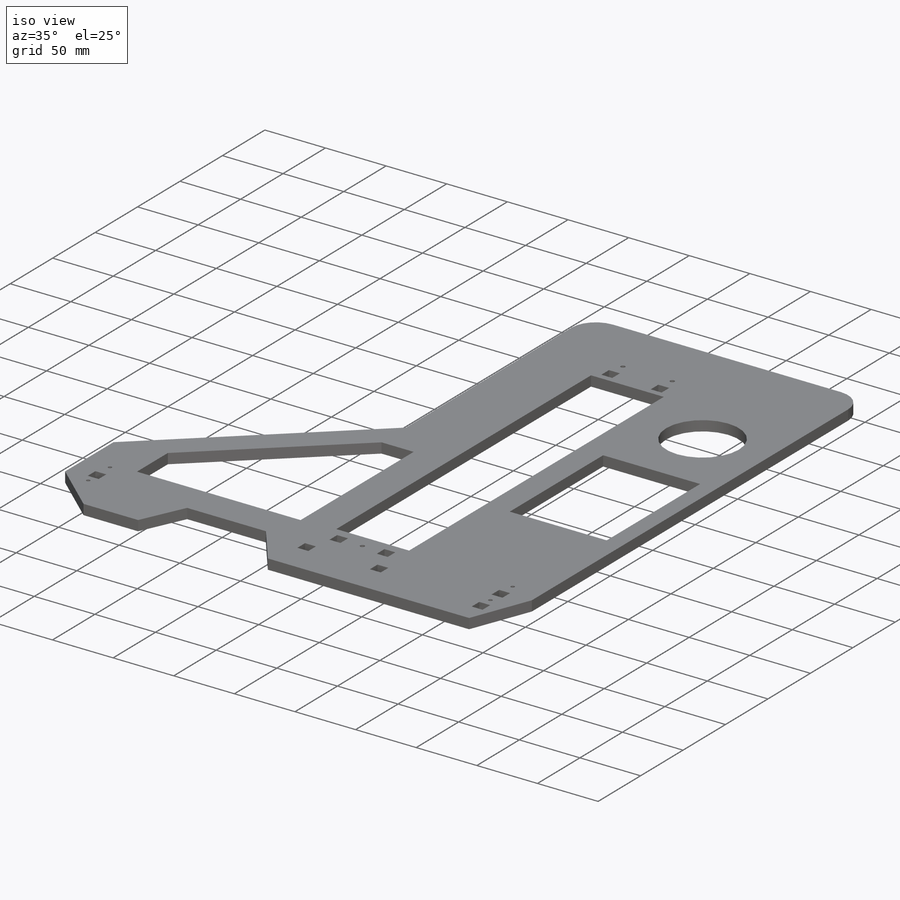
[diagram: iso view]
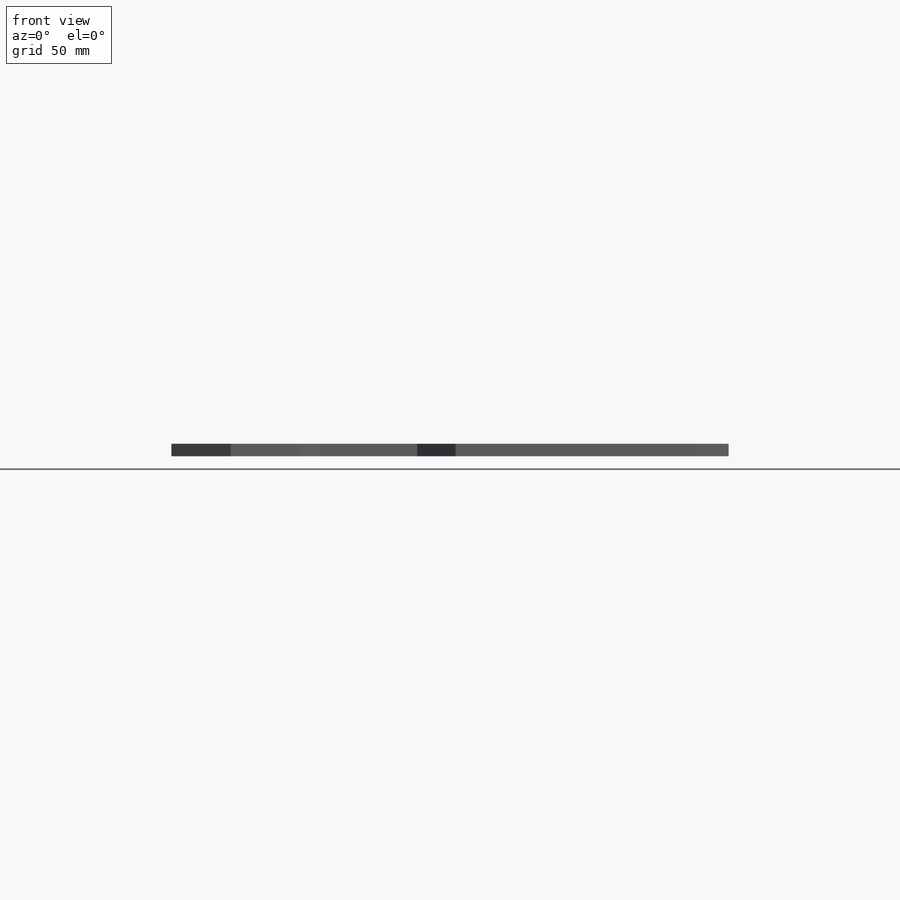
[diagram: front view]
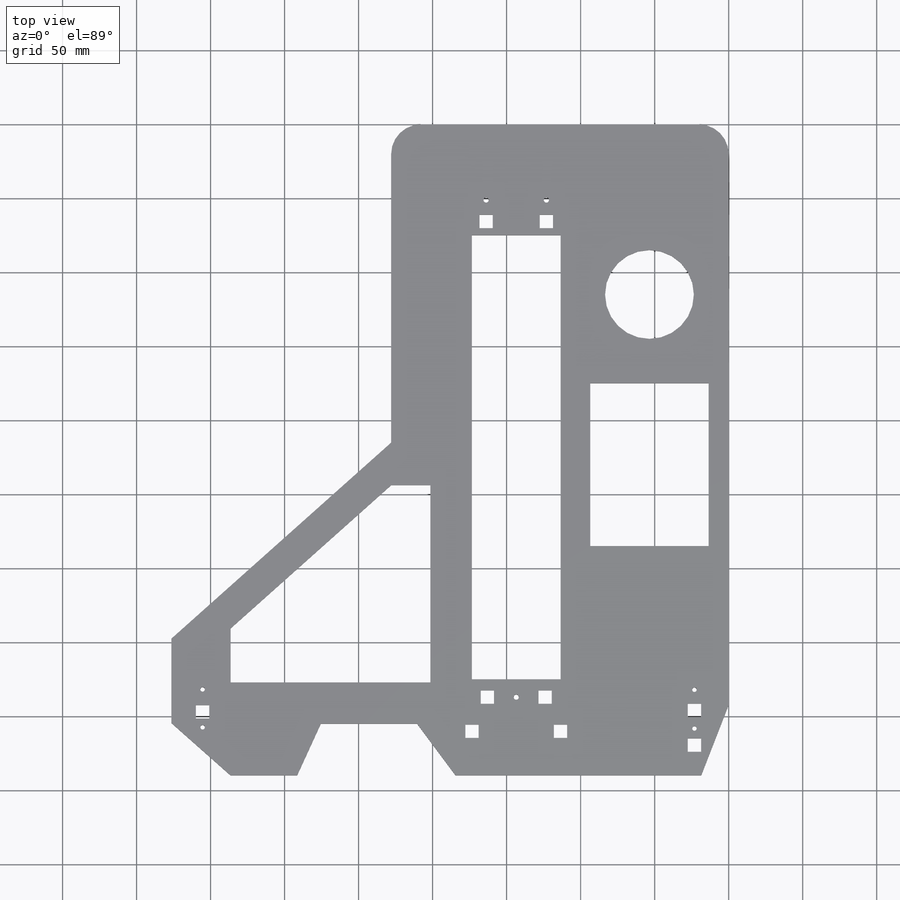
[diagram: top view]
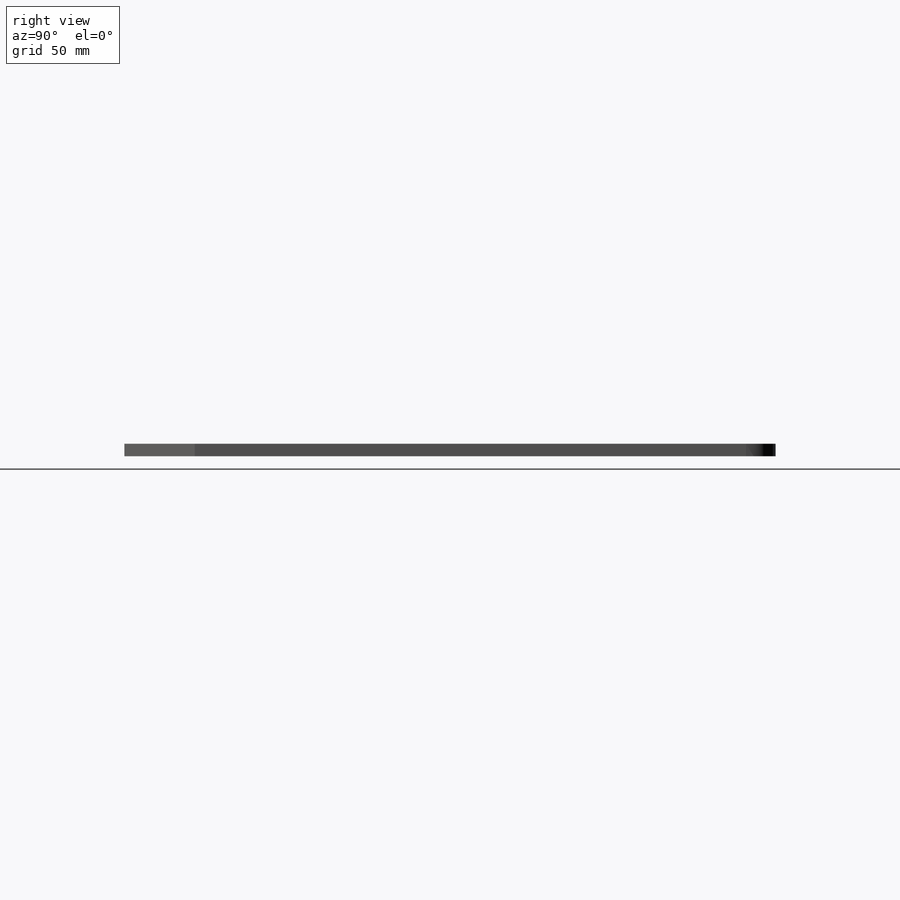
[diagram: right view]
SOLIDWORKS PART (.sldprt)
format: sldprt  version: not decoded by parser v0  size: 344,064 bytes
history: native  units: mm
features: sketch x3, cut_extrude x2, material x1, extrude x1, fillet x1 (+12 scaffold rows collapsed)
feature tree (20):
  scaffold x12  (default folders/planes/origin — collapsed)
  material  "Material <not specified>"
  sketch  "Sketch1"  dims[c1.D1=45.0mm c1.D2=65.0mm c1.D3=228.0mm c1.D4=215.0mm c1.D5=57.0mm c1.D6=200.0mm c1.D7=57.0mm c1.D8=166.0mm c1.D9=52.0mm c1.D10=37.0mm c1.D11=42.0mm c1.D12=0.0mm c1.D13=190.0mm c1.D14=~12.895777mm c2.D9=~10.895777mm c2.D6=18.5mm c3.D9=47.5mm c3.D11=26.0mm c3.D10=16.0mm c3.D14=~20.396078mm c3.D7=34.9mm c3.D12=40.0mm c4.D14=199.0mm]
  extrude  "Boss-Extrude1"  Depth=8.4mm
  sketch  "Sketch2"  dims[c1.D13=3.0mm c1.D14=3.0mm c1.D23=3.0mm c1.D24=3.0mm c1.D31=3.5mm c1.D34=3.5mm c1.D1=~144.958232mm c2.D1=360.0deg c2.D2=~18.971043mm c3.D1=21.5mm c3.D2=28.0mm c3.D3=26.5mm c3.D4=60.0mm c3.D5=300.0mm c3.D6=65.0mm c3.D7=28.0mm c3.D8=76.0mm c3.D9=102.0mm c3.D10=20.0mm c3.D11=162.0mm c4.D8=9.0mm c4.D9=9.0mm c4.D10=9.0mm c4.D11=9.0mm c4.D12=23.45mm c4.D15=26.2mm c4.D16=11.2mm c4.D17=16.0mm c4.D18=0.0mm c4.D19=9.0mm c4.D20=9.0mm c4.D21=3.0mm c4.D22=16.6mm c4.D25=25.6mm c4.D26=10.4mm c4.D27=52.0mm c5.D18=18.6mm c5.D27=9.0mm c5.D28=9.0mm c5.D29=31.7mm c5.D30=4.8mm c5.D32=10.0mm c5.D33=9.0mm c5.D34=9.0mm c5.D35=39.0mm c5.D36=7.6mm c5.D37=0.0mm c5.D38=9.0mm c5.D39=9.0mm c5.D40=10.4mm c5.D41=23.0mm]
  cut_extrude  "Cut-Extrude1"  [1 undecoded]
  fillet  "Fillet1"  Radius=20mm
  sketch  "Sketch3"  dims[D1=60.0mm D2=40.0mm D3=60.0mm D4=80.0mm D5=110.0mm D6=60.0mm]
  cut_extrude  "Cut-Extrude2"  [1 undecoded]
decode coverage: 5 of 7 modeling features carry decoded parameters
note: ~ marks probable driven/reference dimensions
note: 2 parameter values undecoded
note: suppression state not decoded; provenance and decode notes live in map.json
